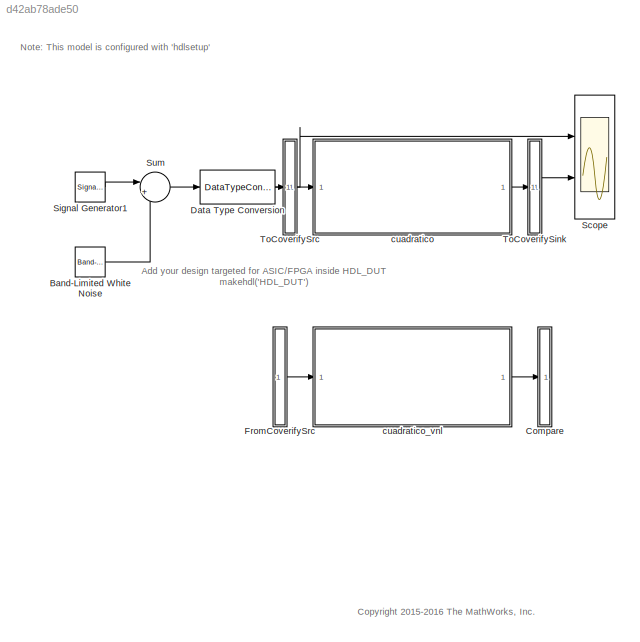
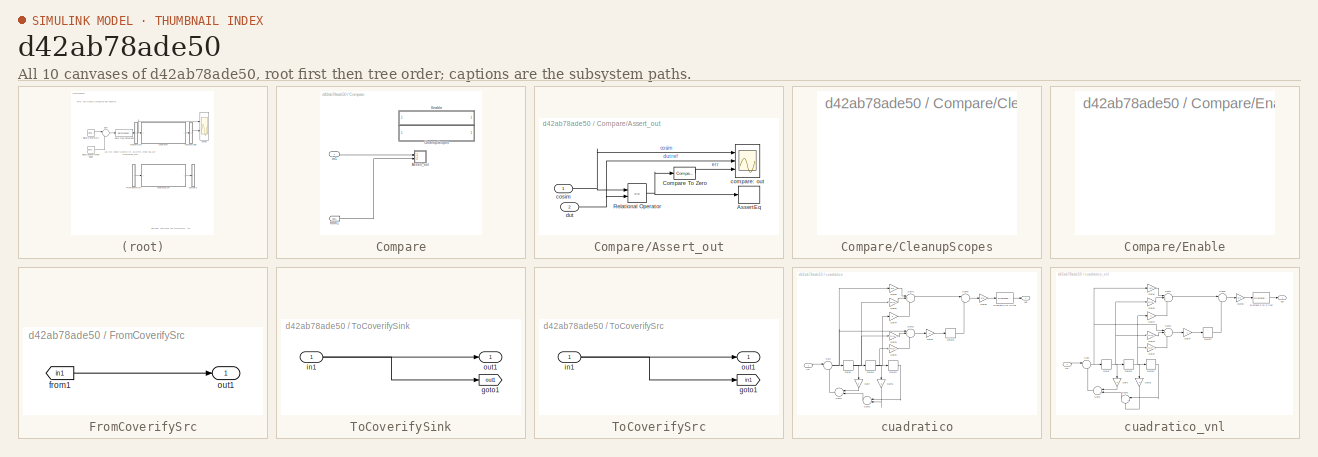
[diagram: thumbnail index - all 10 canvases of the model, root first then tree order]
MODEL slx_d42ab78ade50
KIND model
CONFIG AbsTol = auto
CONFIG EnableMultiTasking = off
CONFIG FixedStep = auto
CONFIG MaxStep = auto
CONFIG MinStep = auto
CONFIG RelTol = 1e-3
CONFIG SampleTimeConstraint = Unconstrained
CONFIG Solver = VariableStepAuto
CONFIG SolverName = VariableStepAuto
CONFIG StartTime = 0.0
CONFIG StopTime = 10.0
BLOCK [Reference] Band-Limited White Noise  REF=simulink/Sources/Band-Limited
White Noise
  Ports = [0, 1]
  SourceBlock = simulink/Sources/Band-Limited\nWhite Noise
  SourceProductBaseCode = SL
  SourceProductName = Simulink
  SourceType = Band-Limited White Noise.
BLOCK [SubSystem] Compare
  Ports = [1]
  RequestExecContextInheritance = off
  Variant = off
BLOCK [SubSystem] Compare/Assert_out
  Ports = [2]
  RequestExecContextInheritance = off
  Variant = off
BLOCK [Assertion] Compare/Assert_out/AssertEq
  StopWhenAssertionFail = off
BLOCK [Reference] Compare/Assert_out/Compare To Zero  REF=simulink/Logic and Bit
Operations/Compare
To Zero
  Ports = [1, 1]
  SourceBlock = simulink/Logic and Bit\nOperations/Compare\nTo Zero
  SourceProductBaseCode = SL
  SourceProductName = Simulink
  SourceType = Compare To Zero
BLOCK [RelationalOperator] Compare/Assert_out/Relational Operator
  InputSameDT = off
  Operator = ==
  OutDataTypeStr = boolean
  Ports = [2, 1]
BLOCK [Scope] Compare/Assert_out/compare: out
  NumInputPorts = 3
  Ports = [3]
  ScopeSpecificationString = Simulink.scopes.TimeScopeBlockCfg('CurrentConfiguration', extmgr.ConfigurationSet(extmgr.Configuration('Core','General UI',true,'MessageLogAutoOpenMode','for warn/fail messages','ShowCloseAll',true,'ShowBringAllForward',true),extmgr.Configuration('Core','Source UI',true,'PlaybackToolbar',true),extmgr.Configuration('Sources','WiredSimulink',true,'PointsPerSignal',50000,'DataLoggingDecimation','1','...<+3251ch>
BLOCK [Inport] Compare/Assert_out/cosim
  IconDisplay = Port number
BLOCK [Inport] Compare/Assert_out/dut
  IconDisplay = Port number
  Port = 2
BLOCK [SubSystem] Compare/CleanupScopes
  OpenFcn = blkName = gcb; %self block\nidx = regexp(blkName, '/CleanupScopes$', 'once');\nblkParent = blkName(1:idx-1);\nblks=find_system(blkParent, 'LookUnderMasks', 'all','blocktype', 'Scope');\nfor itr = 1:length(blks)\n	 hScopeCfg = get_param(blks{itr},'ScopeConfiguration');\n	 hScopeCfg.Visible = ~ hScopeCfg.Visible;\nend\ndrawnow;
  Ports = []
  RequestExecContextInheritance = off
  Variant = off
BLOCK [SubSystem] Compare/Enable
  OpenFcn = blkName = gcb;\nidx = regexp(blkName, '/Enable$', 'once');\nblkParent = blkName(1:idx-1);\nblks=find_system(blkParent, 'LookUnderMasks', 'all','blocktype', 'Assertion');\ne = get_param(blks{1}, 'Enabled');\nif strcmp(e, 'on'), f= 'off';, else, f = 'on';, end\nfor ii=1:length(blks), set_param(blks{ii}, 'Enabled', f);, end\nset_param(gcb, 'MaskDisplay',['fprintf(message(''hdlcoder:cosim:vnl_dblclick_assert...<+47ch>
  Ports = []
  RequestExecContextInheritance = off
  Variant = off
BLOCK [From] Compare/from1
  GotoTag = out1
  TagVisibility = global
BLOCK [Inport] Compare/in1
  IconDisplay = Port number
BLOCK [DataTypeConversion] Data Type Conversion
  OutDataTypeStr = fixdt(1,16,10)
  RndMeth = Floor
  SaturateOnIntegerOverflow = off
BLOCK [SubSystem] FromCoverifySrc
  Ports = [0, 1]
  RequestExecContextInheritance = off
  Variant = off
BLOCK [From] FromCoverifySrc/from1
  GotoTag = in1
BLOCK [Outport] FromCoverifySrc/out1
  IconDisplay = Port number
BLOCK [Scope] Scope
  NumInputPorts = 2
  Ports = [2]
  ScopeSpecificationString = Simulink.scopes.TimeScopeBlockCfg('CurrentConfiguration', extmgr.ConfigurationSet(extmgr.Configuration('Core','General UI',true),extmgr.Configuration('Core','Source UI',true),extmgr.Configuration('Sources','WiredSimulink',true,'DataLoggingSaveFormat','Array','DataLoggingDecimation','1'),extmgr.Configuration('Visuals','Time Domain',true,'SerializedDisplays',{struct('MinYLimReal','-4.64136','MaxYLim...<+2282ch>
BLOCK [SignalGenerator] Signal Generator1
  Frequency = 2000
  Ports = [0, 1]
BLOCK [Sum] Sum
  IconShape = round
  InputSameDT = off
  Inputs = |++
  OutDataTypeStr = Inherit: Inherit via internal rule
  Ports = [2, 1]
  SaturateOnIntegerOverflow = off
BLOCK [SubSystem] ToCoverifySink
  Ports = [1, 1]
  RequestExecContextInheritance = off
  Variant = off
BLOCK [Goto] ToCoverifySink/goto1
  GotoTag = out1
  TagVisibility = global
BLOCK [Inport] ToCoverifySink/in1
  IconDisplay = Port number
BLOCK [Outport] ToCoverifySink/out1
  IconDisplay = Port number
BLOCK [SubSystem] ToCoverifySrc
  Ports = [1, 1]
  RequestExecContextInheritance = off
  Variant = off
BLOCK [Goto] ToCoverifySrc/goto1
  GotoTag = in1
  TagVisibility = global
BLOCK [Inport] ToCoverifySrc/in1
  IconDisplay = Port number
BLOCK [Outport] ToCoverifySrc/out1
  IconDisplay = Port number
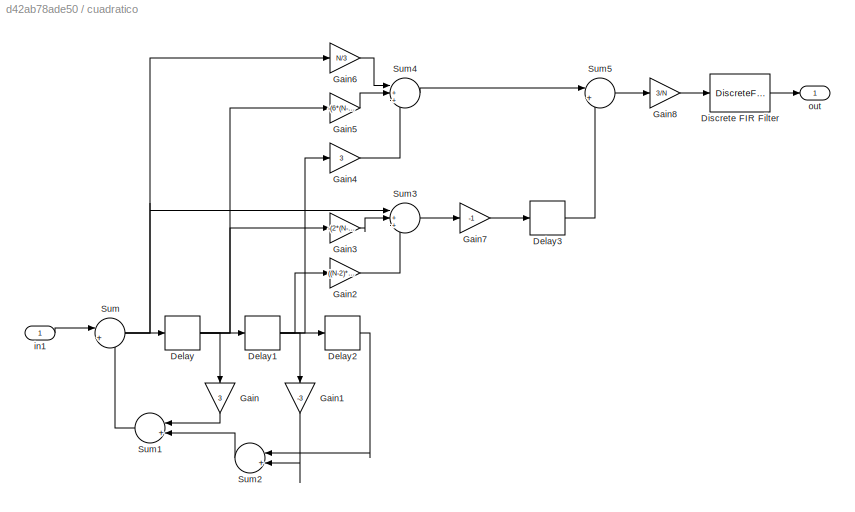
BLOCK [SubSystem] cuadratico
  Ports = [1, 1]
  RequestExecContextInheritance = off
  Variant = off
BLOCK [Delay] cuadratico/Delay
  DelayLength = 1
  InputPortMap = u0
  Ports = [1, 1]
BLOCK [Delay] cuadratico/Delay1
  DelayLength = 1
  InputPortMap = u0
  Ports = [1, 1]
BLOCK [Delay] cuadratico/Delay2
  DelayLength = 1
  InputPortMap = u0
  Ports = [1, 1]
BLOCK [Delay] cuadratico/Delay3
  DelayLength = N
  InputPortMap = u0
  Ports = [1, 1]
BLOCK [DiscreteFir] cuadratico/Discrete FIR Filter
  AccumDataTypeStr = fixdt(1,16,10)
  CoefDataTypeStr = fixdt(1,16,10)
  Coefficients = [0.2298 0.2098 0.1791 0.1557 0.1355 0.1127 0.0931 0.0749 0.0579 0.0422 0.0277 0.0146 0.0028 -0.0077 -0.0169 -0.0249 -0.0316 -0.0370 -0.0411 -0.0440 -0.0455 -0.0458 -0.0447 -0.0424 -0.0388 -0.0339 -0.0277 -0.0203 -0.0115 -0.0015 0.0097 0.0223 0.0362 0.0514 0.0679]
  InputPortMap = u0
  OutDataTypeStr = fixdt(1,16,10)
  OutputPortMap = o0
  Ports = [1, 1]
  ProductDataTypeStr = fixdt(1,16,10)
BLOCK [Gain] cuadratico/Gain
  Gain = 3
  OutDataTypeStr = Inherit: Inherit via internal rule
  ParamDataTypeStr = Inherit: Inherit via internal rule
  SaturateOnIntegerOverflow = off
BLOCK [Gain] cuadratico/Gain1
  Gain = -3
  OutDataTypeStr = Inherit: Inherit via internal rule
  ParamDataTypeStr = Inherit: Inherit via internal rule
  SaturateOnIntegerOverflow = off
BLOCK [Gain] cuadratico/Gain2
  Gain = ((N-2)*(N-3))/((N+1)*(N+2))
  OutDataTypeStr = Inherit: Inherit via internal rule
  ParamDataTypeStr = Inherit: Inherit via internal rule
  SaturateOnIntegerOverflow = off
BLOCK [Gain] cuadratico/Gain3
  Gain = -(2*(N-3))/(N+1)
  OutDataTypeStr = Inherit: Inherit via internal rule
  ParamDataTypeStr = Inherit: Inherit via internal rule
  SaturateOnIntegerOverflow = off
BLOCK [Gain] cuadratico/Gain4
  Gain = 3
  OutDataTypeStr = Inherit: Inherit via internal rule
  ParamDataTypeStr = Inherit: Inherit via internal rule
  SaturateOnIntegerOverflow = off
BLOCK [Gain] cuadratico/Gain5
  Gain = -(6*(N-1))/(N+1)
  OutDataTypeStr = Inherit: Inherit via internal rule
  ParamDataTypeStr = Inherit: Inherit via internal rule
  SaturateOnIntegerOverflow = off
BLOCK [Gain] cuadratico/Gain6
  Gain = N/3
  OutDataTypeStr = Inherit: Inherit via internal rule
  ParamDataTypeStr = Inherit: Inherit via internal rule
  SaturateOnIntegerOverflow = off
BLOCK [Gain] cuadratico/Gain7
  Gain = -1
  OutDataTypeStr = Inherit: Inherit via internal rule
  ParamDataTypeStr = Inherit: Inherit via internal rule
  SaturateOnIntegerOverflow = off
BLOCK [Gain] cuadratico/Gain8
  Gain = 3/N
  OutDataTypeStr = Inherit: Inherit via internal rule
  ParamDataTypeStr = Inherit: Inherit via internal rule
  SaturateOnIntegerOverflow = off
BLOCK [Sum] cuadratico/Sum
  AccumDataTypeStr = fixdt(1,16,10)
  IconShape = round
  InputSameDT = off
  Inputs = |++
  OutDataTypeStr = fixdt(1,16,10)
  Ports = [2, 1]
  SaturateOnIntegerOverflow = off
BLOCK [Sum] cuadratico/Sum1
  AccumDataTypeStr = fixdt(1,16,10)
  IconShape = round
  InputSameDT = off
  Inputs = |++
  OutDataTypeStr = fixdt(1,16,10)
  Ports = [2, 1]
  SaturateOnIntegerOverflow = off
BLOCK [Sum] cuadratico/Sum2
  AccumDataTypeStr = fixdt(1,16,10)
  IconShape = round
  InputSameDT = off
  Inputs = |++
  OutDataTypeStr = fixdt(1,16,10)
  Ports = [2, 1]
  SaturateOnIntegerOverflow = off
BLOCK [Sum] cuadratico/Sum3
  AccumDataTypeStr = fixdt(1,16,10)
  IconShape = round
  InputSameDT = off
  Inputs = |+++
  OutDataTypeStr = fixdt(1,16,10)
  Ports = [3, 1]
  SaturateOnIntegerOverflow = off
BLOCK [Sum] cuadratico/Sum4
  AccumDataTypeStr = fixdt(1,16,10)
  IconShape = round
  InputSameDT = off
  Inputs = |+++
  OutDataTypeStr = fixdt(1,16,10)
  Ports = [3, 1]
  SaturateOnIntegerOverflow = off
BLOCK [Sum] cuadratico/Sum5
  AccumDataTypeStr = fixdt(1,16,10)
  IconShape = round
  InputSameDT = off
  Inputs = |++
  OutDataTypeStr = fixdt(1,16,10)
  Ports = [2, 1]
  SaturateOnIntegerOverflow = off
BLOCK [Inport] cuadratico/in1
  IconDisplay = Port number
  OutDataTypeStr = fixdt(1, 16, 10)
  SampleTime = 0
BLOCK [Outport] cuadratico/out
  IconDisplay = Port number
  OutDataTypeStr = fixdt(1,16,10)
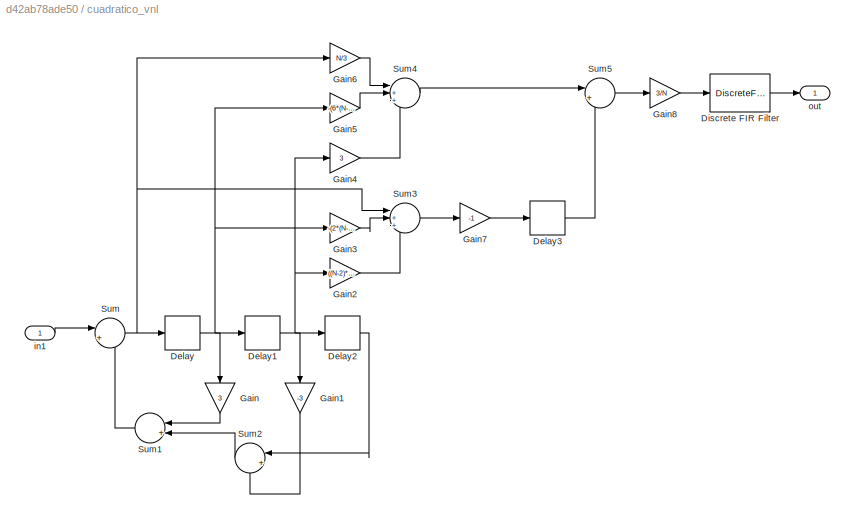
BLOCK [SubSystem] cuadratico_vnl
  Ports = [1, 1]
  RequestExecContextInheritance = off
  Variant = off
BLOCK [Delay] cuadratico_vnl/Delay
  DelayLength = 1
  InputPortMap = u0
  Ports = [1, 1]
BLOCK [Delay] cuadratico_vnl/Delay1
  DelayLength = 1
  InputPortMap = u0
  Ports = [1, 1]
BLOCK [Delay] cuadratico_vnl/Delay2
  DelayLength = 1
  InputPortMap = u0
  Ports = [1, 1]
BLOCK [Delay] cuadratico_vnl/Delay3
  DelayLength = N
  InputPortMap = u0
  Ports = [1, 1]
BLOCK [DiscreteFir] cuadratico_vnl/Discrete FIR Filter
  AccumDataTypeStr = fixdt(1,16,10)
  CoefDataTypeStr = fixdt(1,16,10)
  Coefficients = [0.2298 0.2098 0.1791 0.1557 0.1355 0.1127 0.0931 0.0749 0.0579 0.0422 0.0277 0.0146 0.0028 -0.0077 -0.0169 -0.0249 -0.0316 -0.0370 -0.0411 -0.0440 -0.0455 -0.0458 -0.0447 -0.0424 -0.0388 -0.0339 -0.0277 -0.0203 -0.0115 -0.0015 0.0097 0.0223 0.0362 0.0514 0.0679]
  InputPortMap = u0
  OutDataTypeStr = fixdt(1,16,10)
  OutputPortMap = o0
  Ports = [1, 1]
  ProductDataTypeStr = fixdt(1,16,10)
BLOCK [Gain] cuadratico_vnl/Gain
  Gain = 3
  OutDataTypeStr = Inherit: Inherit via internal rule
  ParamDataTypeStr = Inherit: Inherit via internal rule
  SaturateOnIntegerOverflow = off
BLOCK [Gain] cuadratico_vnl/Gain1
  Gain = -3
  OutDataTypeStr = Inherit: Inherit via internal rule
  ParamDataTypeStr = Inherit: Inherit via internal rule
  SaturateOnIntegerOverflow = off
BLOCK [Gain] cuadratico_vnl/Gain2
  Gain = ((N-2)*(N-3))/((N+1)*(N+2))
  OutDataTypeStr = Inherit: Inherit via internal rule
  ParamDataTypeStr = Inherit: Inherit via internal rule
  SaturateOnIntegerOverflow = off
BLOCK [Gain] cuadratico_vnl/Gain3
  Gain = -(2*(N-3))/(N+1)
  OutDataTypeStr = Inherit: Inherit via internal rule
  ParamDataTypeStr = Inherit: Inherit via internal rule
  SaturateOnIntegerOverflow = off
BLOCK [Gain] cuadratico_vnl/Gain4
  Gain = 3
  OutDataTypeStr = Inherit: Inherit via internal rule
  ParamDataTypeStr = Inherit: Inherit via internal rule
  SaturateOnIntegerOverflow = off
BLOCK [Gain] cuadratico_vnl/Gain5
  Gain = -(6*(N-1))/(N+1)
  OutDataTypeStr = Inherit: Inherit via internal rule
  ParamDataTypeStr = Inherit: Inherit via internal rule
  SaturateOnIntegerOverflow = off
BLOCK [Gain] cuadratico_vnl/Gain6
  Gain = N/3
  OutDataTypeStr = Inherit: Inherit via internal rule
  ParamDataTypeStr = Inherit: Inherit via internal rule
  SaturateOnIntegerOverflow = off
BLOCK [Gain] cuadratico_vnl/Gain7
  Gain = -1
  OutDataTypeStr = Inherit: Inherit via internal rule
  ParamDataTypeStr = Inherit: Inherit via internal rule
  SaturateOnIntegerOverflow = off
BLOCK [Gain] cuadratico_vnl/Gain8
  Gain = 3/N
  OutDataTypeStr = Inherit: Inherit via internal rule
  ParamDataTypeStr = Inherit: Inherit via internal rule
  SaturateOnIntegerOverflow = off
BLOCK [Sum] cuadratico_vnl/Sum
  AccumDataTypeStr = fixdt(1,16,10)
  IconShape = round
  InputSameDT = off
  Inputs = |++
  OutDataTypeStr = fixdt(1,16,10)
  Ports = [2, 1]
  SaturateOnIntegerOverflow = off
BLOCK [Sum] cuadratico_vnl/Sum1
  AccumDataTypeStr = fixdt(1,16,10)
  IconShape = round
  InputSameDT = off
  Inputs = |++
  OutDataTypeStr = fixdt(1,16,10)
  Ports = [2, 1]
  SaturateOnIntegerOverflow = off
BLOCK [Sum] cuadratico_vnl/Sum2
  AccumDataTypeStr = fixdt(1,16,10)
  IconShape = round
  InputSameDT = off
  Inputs = |++
  OutDataTypeStr = fixdt(1,16,10)
  Ports = [2, 1]
  SaturateOnIntegerOverflow = off
BLOCK [Sum] cuadratico_vnl/Sum3
  AccumDataTypeStr = fixdt(1,16,10)
  IconShape = round
  InputSameDT = off
  Inputs = |+++
  OutDataTypeStr = fixdt(1,16,10)
  Ports = [3, 1]
  SaturateOnIntegerOverflow = off
BLOCK [Sum] cuadratico_vnl/Sum4
  AccumDataTypeStr = fixdt(1,16,10)
  IconShape = round
  InputSameDT = off
  Inputs = |+++
  OutDataTypeStr = fixdt(1,16,10)
  Ports = [3, 1]
  SaturateOnIntegerOverflow = off
BLOCK [Sum] cuadratico_vnl/Sum5
  AccumDataTypeStr = fixdt(1,16,10)
  IconShape = round
  InputSameDT = off
  Inputs = |++
  OutDataTypeStr = fixdt(1,16,10)
  Ports = [2, 1]
  SaturateOnIntegerOverflow = off
BLOCK [Inport] cuadratico_vnl/in1
  IconDisplay = Port number
BLOCK [Outport] cuadratico_vnl/out
  IconDisplay = Port number
  OutDataTypeStr = fixdt(1,16,10)
ANNOTATION (root): Add your design targeted for ASIC/FPGA inside HDL_DUT makehdl('HDL_DUT')
ANNOTATION (root): Note: This model is configured with ' hdlsetup '
ANNOTATION (root): <copyright redacted>
LINE Band-Limited White Noise:1 -> Sum:2
LINE Compare/Assert_out/Compare To Zero:1 -> Compare/Assert_out/compare: out:3
NET Compare/Assert_out/Relational Operator:1 -> Compare/Assert_out/AssertEq:1, Compare/Assert_out/Compare To Zero:1
NET Compare/Assert_out/cosim:1 -> Compare/Assert_out/Relational Operator:1, Compare/Assert_out/compare: out:1
NET Compare/Assert_out/dut:1 -> Compare/Assert_out/Relational Operator:2, Compare/Assert_out/compare: out:2
LINE Compare/from1:1 -> Compare/Assert_out:2
LINE Compare/in1:1 -> Compare/Assert_out:1
NET Data Type Conversion:1 -> Scope:1, ToCoverifySrc:1
LINE FromCoverifySrc/from1:1 -> FromCoverifySrc/out1:1
LINE FromCoverifySrc:1 -> cuadratico_vnl:1
LINE Signal Generator1:1 -> Sum:1
LINE Sum:1 -> Data Type Conversion:1
NET ToCoverifySink/in1:1 -> ToCoverifySink/goto1:1, ToCoverifySink/out1:1
LINE ToCoverifySink:1 -> Scope:2
NET ToCoverifySrc/in1:1 -> ToCoverifySrc/goto1:1, ToCoverifySrc/out1:1
LINE ToCoverifySrc:1 -> cuadratico:1
NET cuadratico/Delay1:1 -> cuadratico/Delay2:1, cuadratico/Gain1:1, cuadratico/Gain2:1, cuadratico/Gain4:1
LINE cuadratico/Delay2:1 -> cuadratico/Sum2:1
LINE cuadratico/Delay3:1 -> cuadratico/Sum5:2
NET cuadratico/Delay:1 -> cuadratico/Delay1:1, cuadratico/Gain3:1, cuadratico/Gain5:1, cuadratico/Gain:1
LINE cuadratico/Discrete FIR Filter:1 -> cuadratico/out:1
LINE cuadratico/Gain1:1 -> cuadratico/Sum2:2
LINE cuadratico/Gain2:1 -> cuadratico/Sum3:3
LINE cuadratico/Gain3:1 -> cuadratico/Sum3:2
LINE cuadratico/Gain4:1 -> cuadratico/Sum4:3
LINE cuadratico/Gain5:1 -> cuadratico/Sum4:2
LINE cuadratico/Gain6:1 -> cuadratico/Sum4:1
LINE cuadratico/Gain7:1 -> cuadratico/Delay3:1
LINE cuadratico/Gain8:1 -> cuadratico/Discrete FIR Filter:1
LINE cuadratico/Gain:1 -> cuadratico/Sum1:1
LINE cuadratico/Sum1:1 -> cuadratico/Sum:2
LINE cuadratico/Sum2:1 -> cuadratico/Sum1:2
LINE cuadratico/Sum3:1 -> cuadratico/Gain7:1
LINE cuadratico/Sum4:1 -> cuadratico/Sum5:1
LINE cuadratico/Sum5:1 -> cuadratico/Gain8:1
NET cuadratico/Sum:1 -> cuadratico/Delay:1, cuadratico/Gain6:1, cuadratico/Sum3:1
LINE cuadratico/in1:1 -> cuadratico/Sum:1
LINE cuadratico:1 -> ToCoverifySink:1
NET cuadratico_vnl/Delay1:1 -> cuadratico_vnl/Delay2:1, cuadratico_vnl/Gain1:1, cuadratico_vnl/Gain2:1, cuadratico_vnl/Gain4:1
LINE cuadratico_vnl/Delay2:1 -> cuadratico_vnl/Sum2:1
LINE cuadratico_vnl/Delay3:1 -> cuadratico_vnl/Sum5:2
NET cuadratico_vnl/Delay:1 -> cuadratico_vnl/Delay1:1, cuadratico_vnl/Gain3:1, cuadratico_vnl/Gain5:1, cuadratico_vnl/Gain:1
LINE cuadratico_vnl/Discrete FIR Filter:1 -> cuadratico_vnl/out:1
LINE cuadratico_vnl/Gain1:1 -> cuadratico_vnl/Sum2:2
LINE cuadratico_vnl/Gain2:1 -> cuadratico_vnl/Sum3:3
LINE cuadratico_vnl/Gain3:1 -> cuadratico_vnl/Sum3:2
LINE cuadratico_vnl/Gain4:1 -> cuadratico_vnl/Sum4:3
LINE cuadratico_vnl/Gain5:1 -> cuadratico_vnl/Sum4:2
LINE cuadratico_vnl/Gain6:1 -> cuadratico_vnl/Sum4:1
LINE cuadratico_vnl/Gain7:1 -> cuadratico_vnl/Delay3:1
LINE cuadratico_vnl/Gain8:1 -> cuadratico_vnl/Discrete FIR Filter:1
LINE cuadratico_vnl/Gain:1 -> cuadratico_vnl/Sum1:1
LINE cuadratico_vnl/Sum1:1 -> cuadratico_vnl/Sum:2
LINE cuadratico_vnl/Sum2:1 -> cuadratico_vnl/Sum1:2
LINE cuadratico_vnl/Sum3:1 -> cuadratico_vnl/Gain7:1
LINE cuadratico_vnl/Sum4:1 -> cuadratico_vnl/Sum5:1
LINE cuadratico_vnl/Sum5:1 -> cuadratico_vnl/Gain8:1
NET cuadratico_vnl/Sum:1 -> cuadratico_vnl/Delay:1, cuadratico_vnl/Gain6:1, cuadratico_vnl/Sum3:1
LINE cuadratico_vnl/in1:1 -> cuadratico_vnl/Sum:1
LINE cuadratico_vnl:1 -> Compare:1
note: NET lines group one-source signal fan-out (src -> all destinations, sorted); 1:1 wires keep LINE
